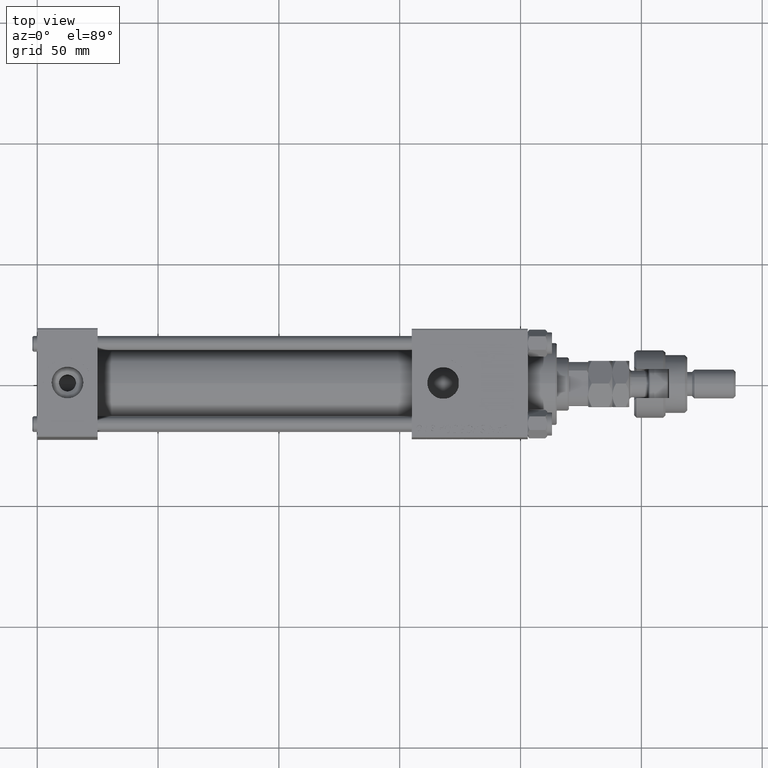
[diagram: clean part render]
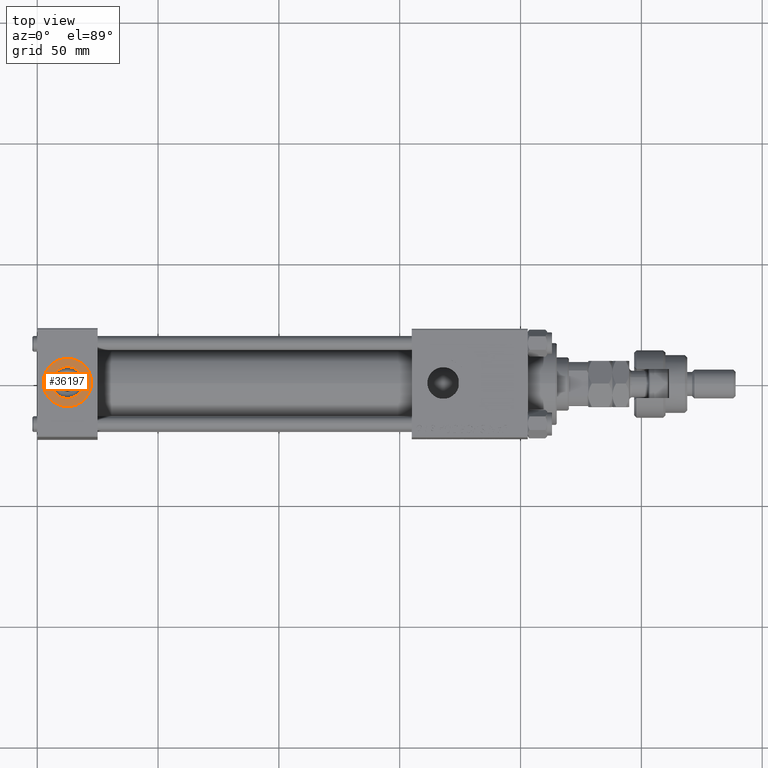
[diagram: same view with one face highlighted and labeled with its STEP entity id]
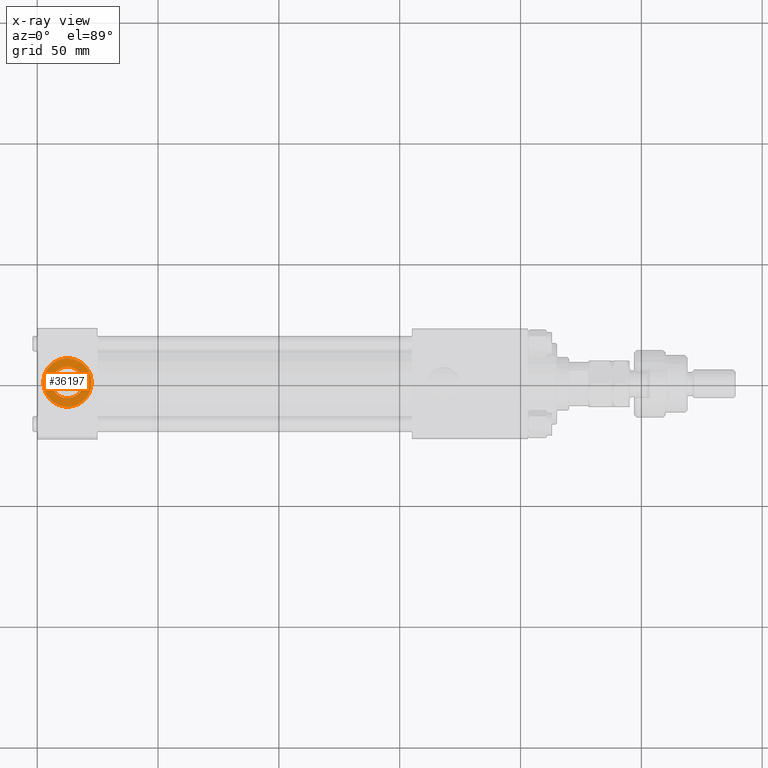
[diagram: x-ray of the same camera — body ghosted, the highlighted face saturated]
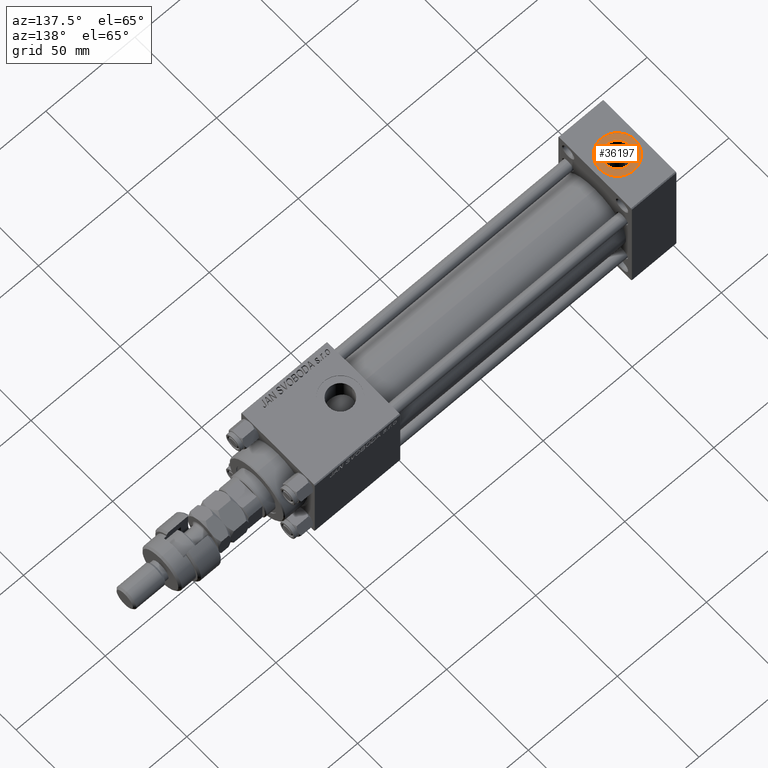
[diagram: same view with one face highlighted and labeled with its STEP entity id]
A machine part, top view. The second image highlights one B-rep face of the part: STEP entity #36197.
The next image is the same camera in x-ray: the body ghosted, the highlighted face saturated — about 0% of this face is hidden behind the body in this view.
A second angle (auxiliary view) of the same face is appended — the face is thin or edge-on in the first view.
In plain terms, the highlighted planar face has unit normal (0, 0, 1).
Its self-contained STEP definition (entity closure, byte-faithful):
#473 = DIRECTION ( 'NONE',  ( 0.000000000000000000, 0.000000000000000000, 1.000000000000000000 ) ) ;
#1189 = AXIS2_PLACEMENT_3D ( 'NONE', #44347, #32363, #24070 ) ;
#2074 = CIRCLE ( 'NONE', #8022, 6.579999999999999183 ) ;
#2507 = EDGE_CURVE ( 'NONE', #9134, #38120, #47418, .T. ) ;
#2840 = CARTESIAN_POINT ( 'NONE',  ( 12.50000000000000000, -5.396917480816734322E-15, 34.80000000000000426 ) ) ;
#3062 = AXIS2_PLACEMENT_3D ( 'NONE', #20766, #473, #21033 ) ;
#3103 = FACE_OUTER_BOUND ( 'NONE', #37202, .T. ) ;
#3397 = DIRECTION ( 'NONE',  ( 0.000000000000000000, 0.000000000000000000, 1.000000000000000000 ) ) ;
#4343 = ORIENTED_EDGE ( 'NONE', *, *, #23881, .T. ) ;
#7219 = CARTESIAN_POINT ( 'NONE',  ( 22.50000000000000000, -5.396917480816734322E-15, 34.80000000000000426 ) ) ;
#8022 = AXIS2_PLACEMENT_3D ( 'NONE', #44669, #24396, #24128 ) ;
#9134 = VERTEX_POINT ( 'NONE', #50547 ) ;
#9461 = CARTESIAN_POINT ( 'NONE',  ( 2.500000000000003997, -4.172270681669381263E-15, 34.80000000000000426 ) ) ;
#10280 = AXIS2_PLACEMENT_3D ( 'NONE', #36508, #3397, #32237 ) ;
#11635 = FACE_BOUND ( 'NONE', #20647, .T. ) ;
#15063 = ORIENTED_EDGE ( 'NONE', *, *, #41553, .F. ) ;
#16932 = EDGE_CURVE ( 'NONE', #19636, #17693, #22242, .T. ) ;
#17693 = VERTEX_POINT ( 'NONE', #7219 ) ;
#19636 = VERTEX_POINT ( 'NONE', #9461 ) ;
#19661 = DIRECTION ( 'NONE',  ( 0.000000000000000000, 0.000000000000000000, 1.000000000000000000 ) ) ;
#20647 = EDGE_LOOP ( 'NONE', ( #15063, #23090 ) ) ;
#20766 = CARTESIAN_POINT ( 'NONE',  ( 12.50000000000000000, -5.396917480816734322E-15, 34.80000000000000426 ) ) ;
#21033 = DIRECTION ( 'NONE',  ( 1.000000000000000000, 0.000000000000000000, 0.000000000000000000 ) ) ;
#22242 = CIRCLE ( 'NONE', #10280, 9.999999999999998224 ) ;
#23090 = ORIENTED_EDGE ( 'NONE', *, *, #2507, .F. ) ;
#23650 = PLANE ( 'NONE',  #47144 ) ;
#23881 = EDGE_CURVE ( 'NONE', #17693, #19636, #50600, .T. ) ;
#24070 = DIRECTION ( 'NONE',  ( 1.000000000000000000, 0.000000000000000000, 0.000000000000000000 ) ) ;
#24128 = DIRECTION ( 'NONE',  ( 1.000000000000000000, 0.000000000000000000, 0.000000000000000000 ) ) ;
#24396 = DIRECTION ( 'NONE',  ( 0.000000000000000000, 0.000000000000000000, 1.000000000000000000 ) ) ;
#31933 = DIRECTION ( 'NONE',  ( 1.000000000000000000, 0.000000000000000000, -0.000000000000000000 ) ) ;
#32237 = DIRECTION ( 'NONE',  ( 1.000000000000000000, 0.000000000000000000, 0.000000000000000000 ) ) ;
#32363 = DIRECTION ( 'NONE',  ( 0.000000000000000000, 0.000000000000000000, 1.000000000000000000 ) ) ;
#36197 = ADVANCED_FACE ( 'NONE', ( #11635, #3103 ), #23650, .T. ) ;
#36508 = CARTESIAN_POINT ( 'NONE',  ( 12.50000000000000000, -5.396917480816734322E-15, 34.80000000000000426 ) ) ;
#37202 = EDGE_LOOP ( 'NONE', ( #4343, #45504 ) ) ;
#38120 = VERTEX_POINT ( 'NONE', #46382 ) ;
#41553 = EDGE_CURVE ( 'NONE', #38120, #9134, #2074, .T. ) ;
#44347 = CARTESIAN_POINT ( 'NONE',  ( 12.50000000000000000, -5.396917480816734322E-15, 34.80000000000000426 ) ) ;
#44669 = CARTESIAN_POINT ( 'NONE',  ( 12.50000000000000000, -5.396917480816734322E-15, 34.80000000000000426 ) ) ;
#45504 = ORIENTED_EDGE ( 'NONE', *, *, #16932, .T. ) ;
#46382 = CARTESIAN_POINT ( 'NONE',  ( 19.07999999999999829, -5.396917480816734322E-15, 34.80000000000000426 ) ) ;
#47144 = AXIS2_PLACEMENT_3D ( 'NONE', #2840, #19661, #31933 ) ;
#47418 = CIRCLE ( 'NONE', #3062, 6.579999999999999183 ) ;
#50547 = CARTESIAN_POINT ( 'NONE',  ( 5.920000000000002593, -4.591099886977776069E-15, 34.80000000000000426 ) ) ;
#50600 = CIRCLE ( 'NONE', #1189, 9.999999999999998224 ) ;